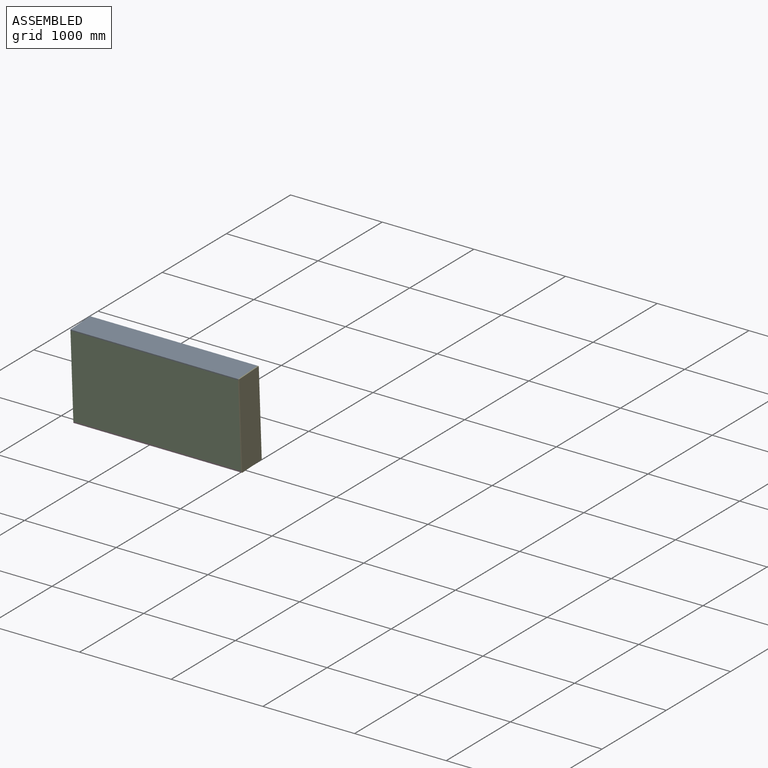
[diagram: assembled view]
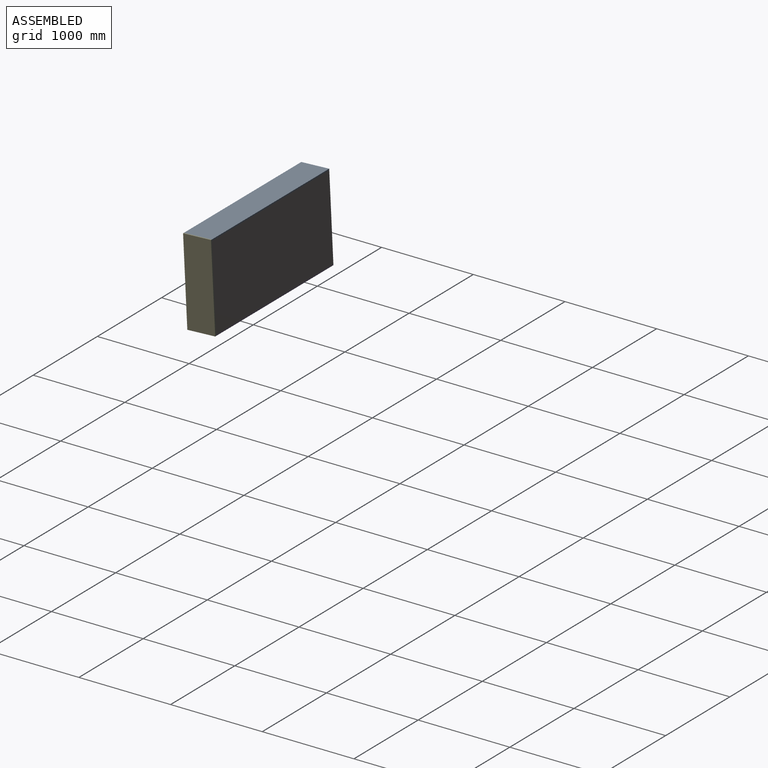
[diagram: assembled view, second angle]
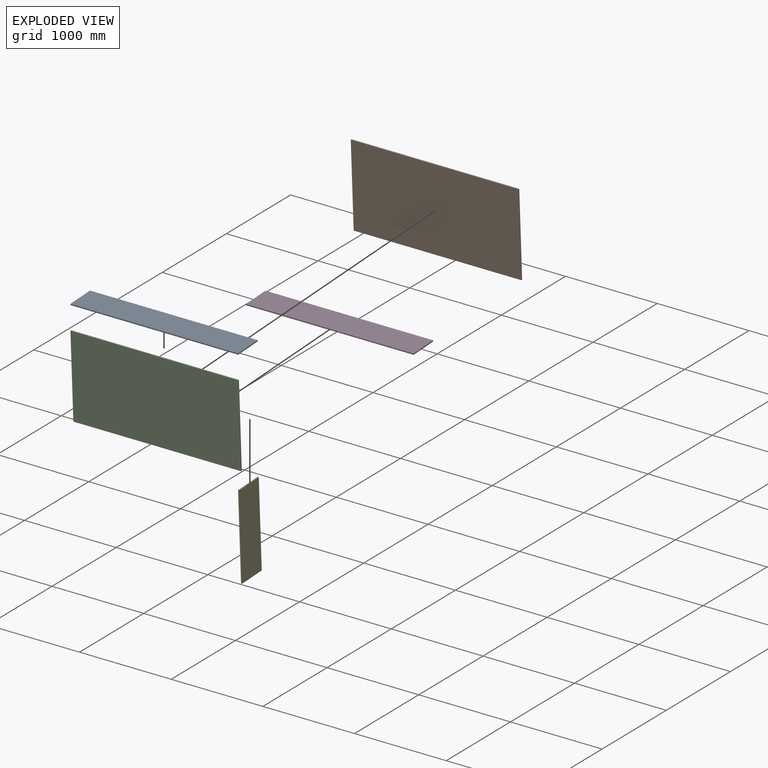
[diagram: exploded view]
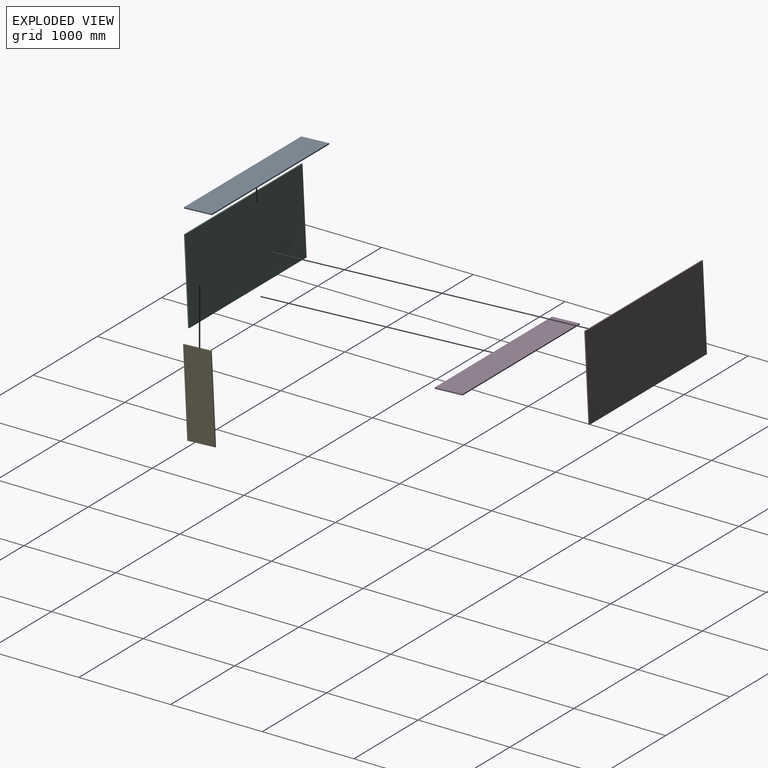
[diagram: exploded view, second angle]
ASSEMBLY  parts=5 mates=4
PART A: 6 faces, bbox 1828.8x12.7x304.8 mm
  f0: plane 304.8x12.7mm, normal (-1,0,0), area 3871mm2, adj f1,f3,f4,f5
  f1: plane 1828.8x12.7mm, normal (0,0,-1), area 23225.8mm2, adj f0,f2,f4,f5
  f2: plane 304.8x12.7mm, normal (1,0,0), area 3871mm2, adj f1,f3,f4,f5
  f3: plane 1828.8x12.7mm, normal (0,0,1), area 23225.8mm2, adj f0,f2,f4,f5
  f4: plane 1828.8x304.8mm, normal (0,-1,0), area 557418.2mm2, adj f0,f1,f2,f3
  f5: plane 1828.8x304.8mm, normal (0,1,0), area 557418.2mm2, adj f0,f1,f2,f3
PART B: 6 faces, bbox 1828.8x12.7x914.4 mm
  f0: plane 914.4x12.7mm, normal (-1,0,0), area 11612.9mm2, adj f1,f3,f4,f5
  f1: plane 1828.8x12.7mm, normal (0,0,-1), area 23225.8mm2, adj f0,f2,f4,f5
  f2: plane 914.4x12.7mm, normal (1,0,0), area 11612.9mm2, adj f1,f3,f4,f5
  f3: plane 1828.8x12.7mm, normal (0,0,1), area 23225.8mm2, adj f0,f2,f4,f5
  f4: plane 1828.8x914.4mm, normal (0,-1,0), area 1672254.7mm2, adj f0,f1,f2,f3
  f5: plane 1828.8x914.4mm, normal (0,1,0), area 1672254.7mm2, adj f0,f1,f2,f3
PART C: same geometry as B
PART D: same geometry as A
PART E: 6 faces, bbox 304.8x12.7x939.8 mm
  f0: plane 939.8x12.7mm, normal (-1,0,0), area 11935.5mm2, adj f1,f3,f4,f5
  f1: plane 304.8x12.7mm, normal (0,0,-1), area 3871mm2, adj f0,f2,f4,f5
  f2: plane 939.8x12.7mm, normal (1,0,0), area 11935.5mm2, adj f1,f3,f4,f5
  f3: plane 304.8x12.7mm, normal (0,0,1), area 3871mm2, adj f0,f2,f4,f5
  f4: plane 939.8x304.8mm, normal (0,-1,0), area 286451mm2, adj f0,f1,f2,f3
  f5: plane 939.8x304.8mm, normal (0,1,0), area 286451mm2, adj f0,f1,f2,f3
PLACE A rot(axis=(1,0,0),92.8deg) t=(1387.97,916.12,1334.78)mm
PLACE B rot(axis=(1,0,0),2.8deg) t=(1179.32,1305.39,-371.89)mm
PLACE C rot(axis=(1,0,0),2.8deg) t=(1179.32,1013.65,-386.27)mm
PLACE D rot(axis=(1,0,0),92.8deg) t=(1387.97,961.75,408.8)mm
PLACE E rot(axis=(0.02,-0.02,1),90deg) t=(1387.97,208.6,813.13)mm
MATE fastened C.f2 <-> A.f2  axis (1,0,0) through (1387.97,916.74,1322.09)mm
MATE fastened E.f0 <-> A.f3  axis (0,-1,-0.05) through (1387.97,916.12,1334.78)mm
MATE fastened C.f4 <-> D.f3  axis (0,-1,-0.05) through (1387.97,961.75,408.8)mm
MATE fastened D.f1 <-> B.f5  axis (0,1,0.05) through (1387.97,1266.18,423.8)mm
